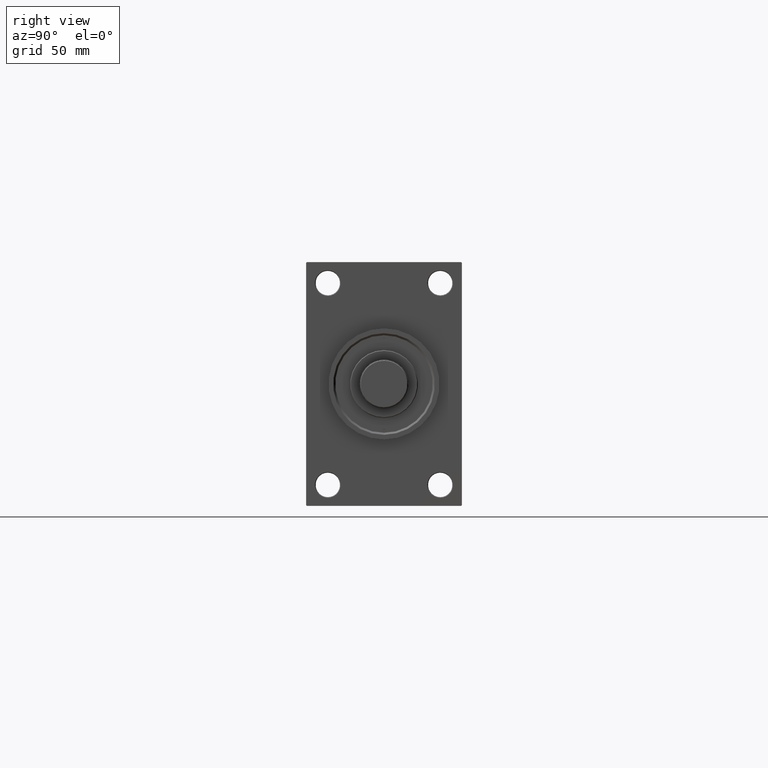
[diagram: clean part render]
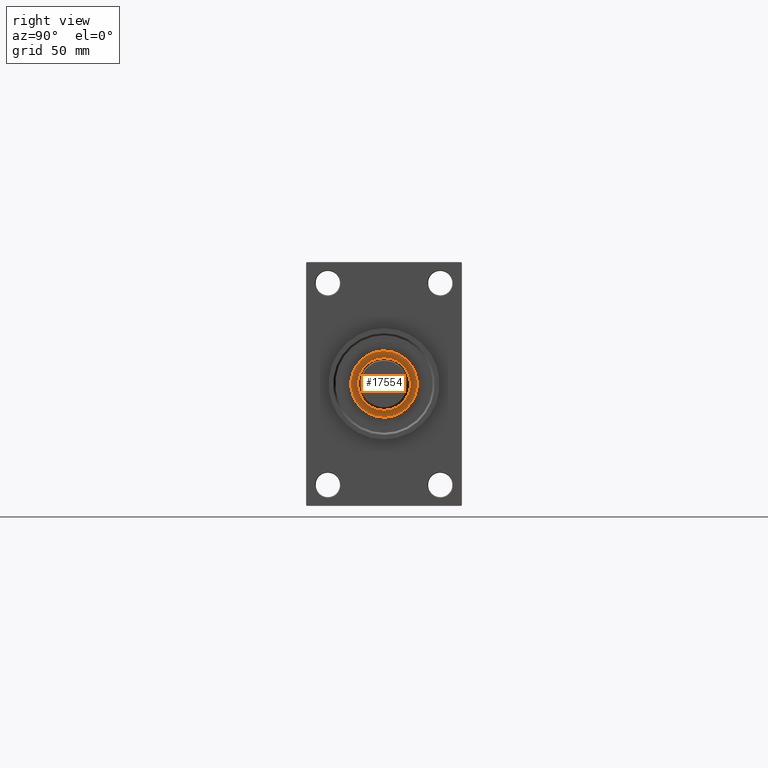
[diagram: same view with one face highlighted and labeled with its STEP entity id]
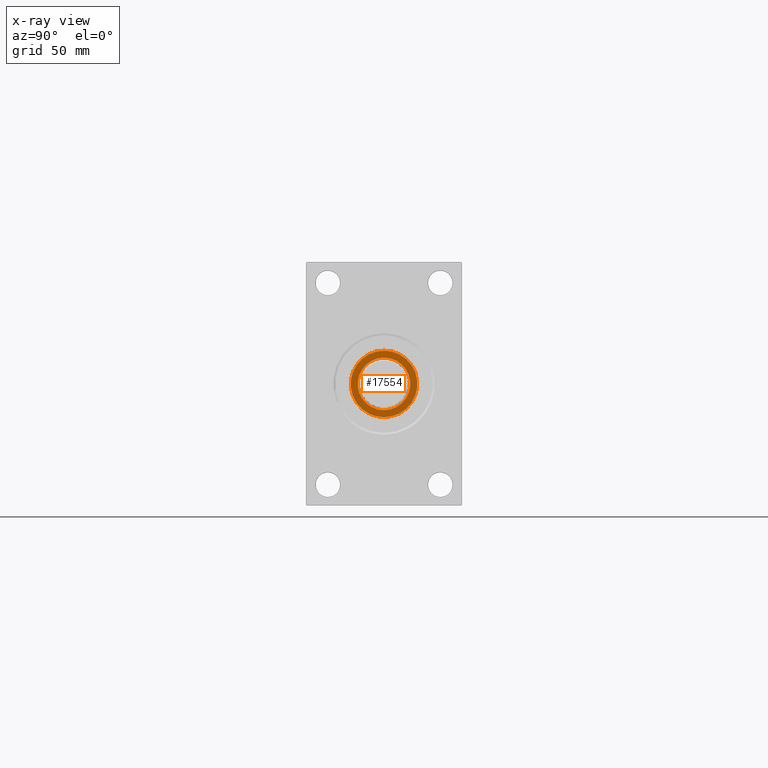
[diagram: x-ray of the same camera — body ghosted, the highlighted face saturated]
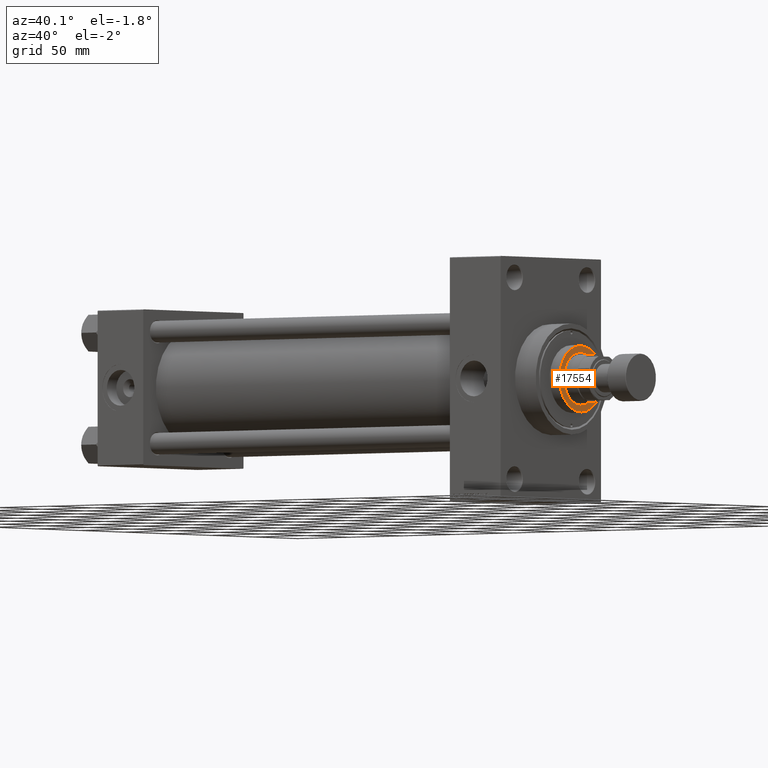
[diagram: same view with one face highlighted and labeled with its STEP entity id]
A machine part, right view. The second image highlights one B-rep face of the part: STEP entity #17554.
The next image is the same camera in x-ray: the body ghosted, the highlighted face saturated — about 0% of this face is hidden behind the body in this view.
A second angle (auxiliary view) of the same face is appended — the face is thin or edge-on in the first view.
In plain terms, the highlighted planar face has unit normal (1, -0, -0).
Its self-contained STEP definition (entity closure, byte-faithful):
#1389 = CARTESIAN_POINT ( 'NONE',  ( 0.000000000000000000, 0.000000000000000000, 52.25999999999999801 ) ) ;
#2543 = VERTEX_POINT ( 'NONE', #8520 ) ;
#2670 = EDGE_CURVE ( 'NONE', #2543, #35534, #45517, .T. ) ;
#5536 = DIRECTION ( 'NONE',  ( 1.000000000000000000, 0.000000000000000000, -0.000000000000000000 ) ) ;
#6419 = DIRECTION ( 'NONE',  ( 1.000000000000000000, 0.000000000000000000, 0.000000000000000000 ) ) ;
#6472 = EDGE_CURVE ( 'NONE', #23557, #31273, #11298, .T. ) ;
#6560 = AXIS2_PLACEMENT_3D ( 'NONE', #11326, #19149, #8120 ) ;
#8120 = DIRECTION ( 'NONE',  ( 1.000000000000000000, 0.000000000000000000, 0.000000000000000000 ) ) ;
#8520 = CARTESIAN_POINT ( 'NONE',  ( -19.50000000000000000, 2.388061258337338939E-15, 52.25999999999999801 ) ) ;
#8668 = ORIENTED_EDGE ( 'NONE', *, *, #41806, .F. ) ;
#10868 = CIRCLE ( 'NONE', #14775, 24.49999999999998224 ) ;
#11298 = CIRCLE ( 'NONE', #21458, 24.49999999999998224 ) ;
#11326 = CARTESIAN_POINT ( 'NONE',  ( 0.000000000000000000, 0.000000000000000000, 52.25999999999999801 ) ) ;
#13802 = EDGE_LOOP ( 'NONE', ( #32982, #37348 ) ) ;
#14775 = AXIS2_PLACEMENT_3D ( 'NONE', #43612, #25009, #6419 ) ;
#17325 = CARTESIAN_POINT ( 'NONE',  ( 0.000000000000000000, 0.000000000000000000, 52.25999999999999801 ) ) ;
#17554 = ADVANCED_FACE ( 'NONE', ( #23880, #20703 ), #27530, .T. ) ;
#18982 = AXIS2_PLACEMENT_3D ( 'NONE', #17325, #46677, #28088 ) ;
#19149 = DIRECTION ( 'NONE',  ( 0.000000000000000000, 0.000000000000000000, 1.000000000000000000 ) ) ;
#20614 = CIRCLE ( 'NONE', #6560, 19.50000000000000000 ) ;
#20703 = FACE_OUTER_BOUND ( 'NONE', #13802, .T. ) ;
#21458 = AXIS2_PLACEMENT_3D ( 'NONE', #34080, #44622, #44861 ) ;
#23557 = VERTEX_POINT ( 'NONE', #25099 ) ;
#23880 = FACE_BOUND ( 'NONE', #45631, .T. ) ;
#25009 = DIRECTION ( 'NONE',  ( 0.000000000000000000, 0.000000000000000000, 1.000000000000000000 ) ) ;
#25099 = CARTESIAN_POINT ( 'NONE',  ( 24.49999999999998224, 3.031000827889698072E-15, 52.25999999999999801 ) ) ;
#27327 = EDGE_CURVE ( 'NONE', #31273, #23557, #10868, .T. ) ;
#27530 = PLANE ( 'NONE',  #47350 ) ;
#28088 = DIRECTION ( 'NONE',  ( 1.000000000000000000, 0.000000000000000000, 0.000000000000000000 ) ) ;
#31273 = VERTEX_POINT ( 'NONE', #40530 ) ;
#32982 = ORIENTED_EDGE ( 'NONE', *, *, #27327, .T. ) ;
#34080 = CARTESIAN_POINT ( 'NONE',  ( 0.000000000000000000, 0.000000000000000000, 52.25999999999999801 ) ) ;
#35479 = CARTESIAN_POINT ( 'NONE',  ( 19.50000000000000000, 0.000000000000000000, 52.25999999999999801 ) ) ;
#35534 = VERTEX_POINT ( 'NONE', #35479 ) ;
#37348 = ORIENTED_EDGE ( 'NONE', *, *, #6472, .T. ) ;
#40530 = CARTESIAN_POINT ( 'NONE',  ( -24.49999999999998224, 0.000000000000000000, 52.25999999999999801 ) ) ;
#41806 = EDGE_CURVE ( 'NONE', #35534, #2543, #20614, .T. ) ;
#42948 = ORIENTED_EDGE ( 'NONE', *, *, #2670, .F. ) ;
#43440 = DIRECTION ( 'NONE',  ( 0.000000000000000000, 0.000000000000000000, 1.000000000000000000 ) ) ;
#43612 = CARTESIAN_POINT ( 'NONE',  ( 0.000000000000000000, 0.000000000000000000, 52.25999999999999801 ) ) ;
#44622 = DIRECTION ( 'NONE',  ( 0.000000000000000000, 0.000000000000000000, 1.000000000000000000 ) ) ;
#44861 = DIRECTION ( 'NONE',  ( 1.000000000000000000, 0.000000000000000000, 0.000000000000000000 ) ) ;
#45517 = CIRCLE ( 'NONE', #18982, 19.50000000000000000 ) ;
#45631 = EDGE_LOOP ( 'NONE', ( #8668, #42948 ) ) ;
#46677 = DIRECTION ( 'NONE',  ( 0.000000000000000000, 0.000000000000000000, 1.000000000000000000 ) ) ;
#47350 = AXIS2_PLACEMENT_3D ( 'NONE', #1389, #43440, #5536 ) ;